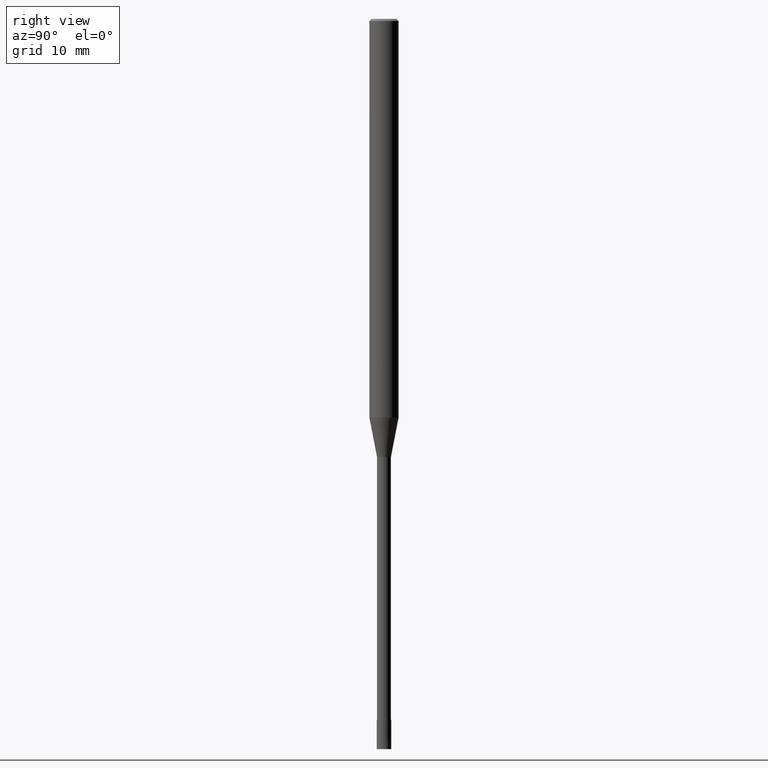
[diagram: clean part render]
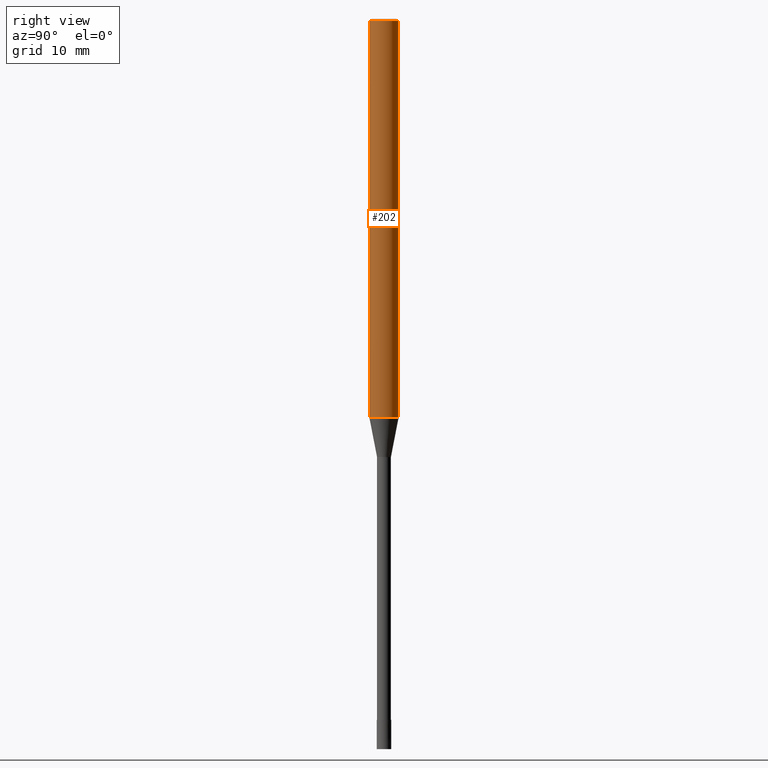
[diagram: same view with one face highlighted and labeled with its STEP entity id]
A machine part, right view. The second image highlights one B-rep face of the part: STEP entity #202.
In plain terms, the highlighted cylindrical surface (edge-blend (fillet) strip) has radius 2 mm, axis along (-0, -0, 1).
Its self-contained STEP definition (entity closure, byte-faithful):
#92=EDGE_CURVE('',#98,#154,#229,.T.);
#98=VERTEX_POINT('',#236);
#154=VERTEX_POINT('',#301);
#164=VERTEX_POINT('',#313);
#168=EDGE_CURVE('',#98,#196,#317,.T.);
#192=EDGE_CURVE('',#154,#164,#342,.T.);
#196=VERTEX_POINT('',#348);
#202=ADVANCED_FACE('',(#354),#355,.T.);
#206=EDGE_CURVE('',#164,#196,#359,.T.);
#229=LINE('',#375,#376);
#236=CARTESIAN_POINT('',(0.0,2.0,-0.299999999999997));
#301=CARTESIAN_POINT('',(0.0,2.0,-54.598));
#313=CARTESIAN_POINT('',(2.44921270764475E-016,-2.0,-54.598));
#317=CIRCLE('',#483,2.0);
#342=CIRCLE('',#513,2.0);
#348=CARTESIAN_POINT('',(2.44921270764475E-016,-2.0,-0.299999999999997));
#354=FACE_OUTER_BOUND('',#528,.T.);
#355=CYLINDRICAL_SURFACE('',#529,2.0);
#359=LINE('',#536,#537);
#375=CARTESIAN_POINT('',(-2.44921270764475E-016,2.0,-27.449));
#376=VECTOR('',#542,1.0);
#483=AXIS2_PLACEMENT_3D('',#664,#665,#666);
#513=AXIS2_PLACEMENT_3D('',#686,#687,#688);
#528=EDGE_LOOP('',(#702,#703,#704,#705));
#529=AXIS2_PLACEMENT_3D('',#706,#707,#708);
#536=CARTESIAN_POINT('',(2.44921270764475E-016,-2.0,-27.449));
#537=VECTOR('',#710,1.0);
#542=DIRECTION('',(0.0,0.0,-1.0));
#664=CARTESIAN_POINT('',(0.0,0.0,-0.299999999999997));
#665=DIRECTION('',(0.0,0.0,-1.0));
#666=DIRECTION('',(0.0,1.0,0.0));
#686=CARTESIAN_POINT('',(0.0,0.0,-54.598));
#687=DIRECTION('',(0.0,0.0,-1.0));
#688=DIRECTION('',(0.0,1.0,0.0));
#702=ORIENTED_EDGE('',*,*,#92,.F.);
#703=ORIENTED_EDGE('',*,*,#168,.T.);
#704=ORIENTED_EDGE('',*,*,#206,.F.);
#705=ORIENTED_EDGE('',*,*,#192,.F.);
#706=CARTESIAN_POINT('',(0.0,0.0,-27.449));
#707=DIRECTION('',(-0.0,-0.0,1.0));
#708=DIRECTION('',(0.0,1.0,0.0));
#710=DIRECTION('',(-0.0,-0.0,1.0));